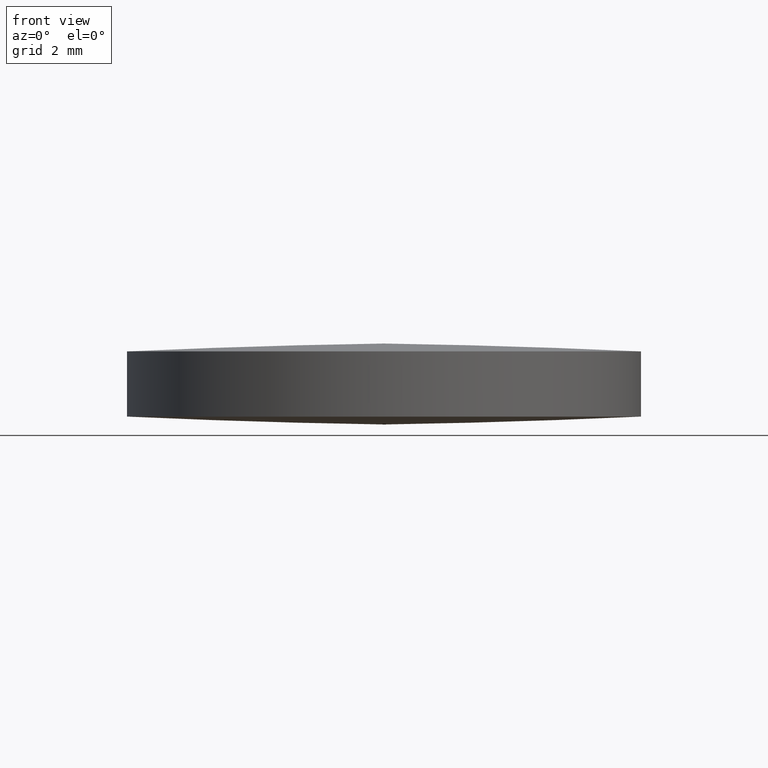
[diagram: clean part render]
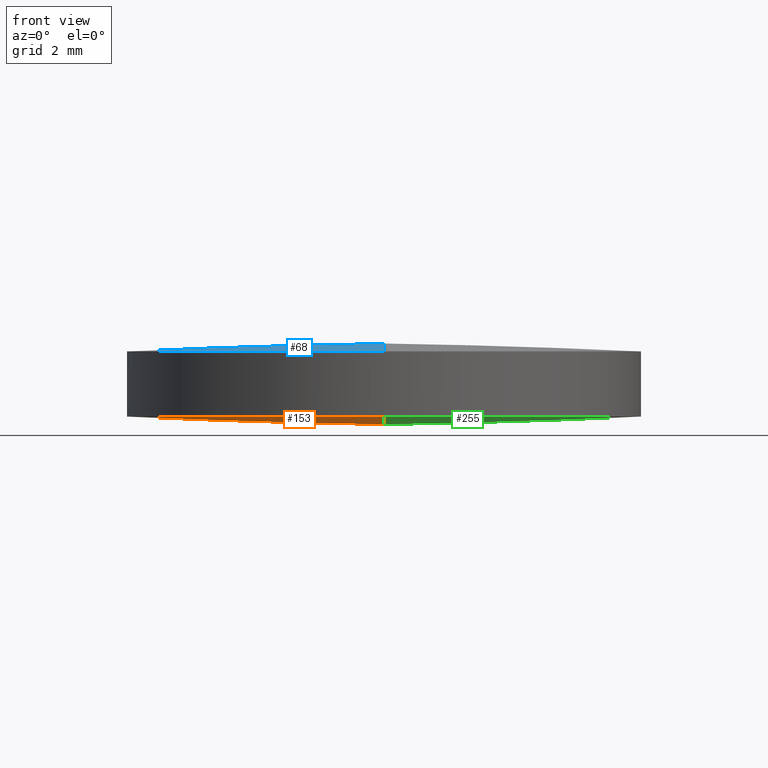
[diagram: same view with three faces highlighted in distinct colors, each labeled with its STEP entity id]
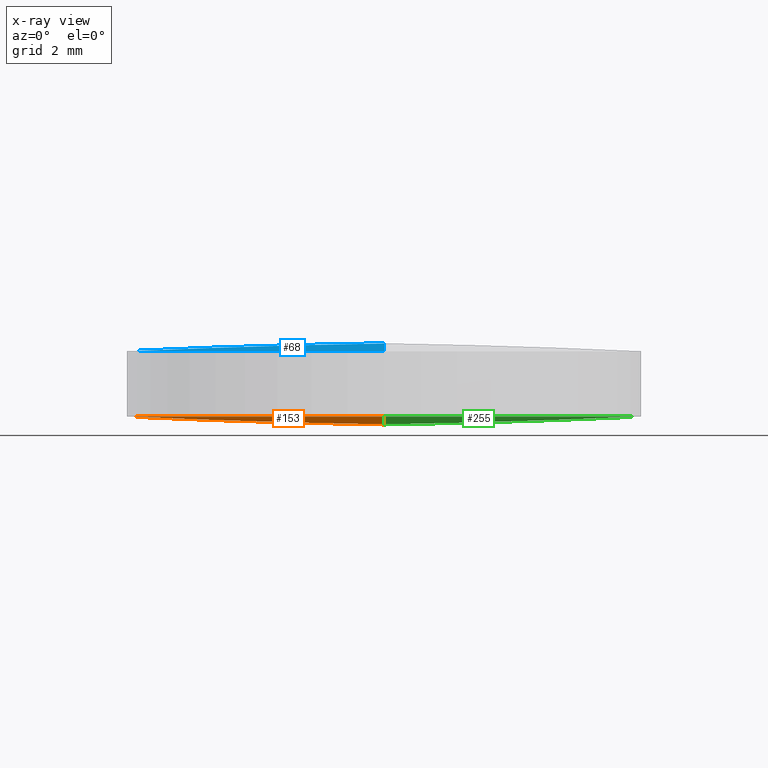
[diagram: x-ray of the same camera — body ghosted, the three highlighted faces saturated]
A machine part, front view with three faces highlighted in distinct colors.
The next image is the same camera in x-ray (body ghosted, the three faces saturated) — at least one of them is partly hidden behind the body in this view.
Their STEP definitions:

[orange] entity #153 — the highlighted face is a freeform B-spline surface patch.
#2 = CARTESIAN_POINT ( 'NONE',  ( 7.105427357601000300E-015, 7.105427357601000300E-015, 103.4000000000000100 ) ) ;
#8 = CARTESIAN_POINT ( 'NONE',  ( -4.263824758279389100, 2.144798117303475600, -0.0008099461018445440600 ) ) ;
#9 = CARTESIAN_POINT ( 'NONE',  ( -2.132421672001572500, 2.144798117303475600, -0.06671192655137170300 ) ) ;
#12 = ORIENTED_EDGE ( 'NONE', *, *, #87, .F. ) ;
#15 = DIRECTION ( 'NONE',  ( 1.000000000000000000, 8.881784197001252300E-016, 0.0000000000000000000 ) ) ;
#17 = EDGE_CURVE ( 'NONE', #152, #101, #275, .T. ) ;
#26 = DIRECTION ( 'NONE',  ( -0.0000000000000000000, -0.0000000000000000000, -1.000000000000000000 ) ) ;
#27 = CARTESIAN_POINT ( 'NONE',  ( -6.349999999999999600, 1.998896044546239400E-015, 0.1951672643184800000 ) ) ;
#33 = CARTESIAN_POINT ( 'NONE',  ( -4.252838692053341400, 6.426102327413745200, 0.2656100430614600200 ) ) ;
#45 = EDGE_CURVE ( 'NONE', #133, #152, #98, .T. ) ;
#50 = AXIS2_PLACEMENT_3D ( 'NONE', #92, #116, #15 ) ;
#62 = CARTESIAN_POINT ( 'NONE',  ( -2.132421672001572100, -2.144798117303465400, -0.06671192655135792200 ) ) ;
#64 = ORIENTED_EDGE ( 'NONE', *, *, #17, .T. ) ;
#75 = CARTESIAN_POINT ( 'NONE',  ( -2.220774660677933400E-014, 6.350000000000019200, 0.1951672643184799200 ) ) ;
#76 = DIRECTION ( 'NONE',  ( 1.000000000000000000, 0.0000000000000000000, 0.0000000000000000000 ) ) ;
#87 = EDGE_CURVE ( 'NONE', #133, #101, #151, .T. ) ;
#92 = CARTESIAN_POINT ( 'NONE',  ( 2.498001805406600200E-016, 1.221245327087670000E-015, 0.1951672643184800000 ) ) ;
#93 =( BOUNDED_SURFACE ( )  B_SPLINE_SURFACE ( 3, 3, ( 
 ( #293, #263, #292, #164 ),
 ( #215, #171, #62, #122 ),
 ( #271, #8, #9, #100 ),
 ( #254, #33, #217, #102 ) ),
 .UNSPECIFIED., .F., .F., .F. ) 
 B_SPLINE_SURFACE_WITH_KNOTS ( ( 4, 4 ),
 ( 4, 4 ),
 ( 0.0000000000000000000, 1.000000000000000000 ),
 ( 0.0000000000000000000, 1.000000000000000000 ),
 .UNSPECIFIED. ) 
 GEOMETRIC_REPRESENTATION_ITEM ( )  RATIONAL_B_SPLINE_SURFACE ( (
 ( 1.000000000000000000, 0.9996815558770323400, 0.9996815558770323400, 1.000000000000000000),
 ( 0.9987112968147171500, 0.9983932630717050600, 0.9983932630717050600, 0.9987112968147171500),
 ( 0.9987112968147171500, 0.9983932630717050600, 0.9983932630717050600, 0.9987112968147171500),
 ( 1.000000000000000000, 0.9996815558770323400, 0.9996815558770323400, 1.000000000000000000) ) ) 
 REPRESENTATION_ITEM ( '' )  SURFACE ( )  );
#98 = CIRCLE ( 'NONE', #50, 6.349999999999999600 ) ;
#100 = CARTESIAN_POINT ( 'NONE',  ( -4.770489558936219500E-014, 2.144798117303475600, -0.06671192655137282700 ) ) ;
#101 = VERTEX_POINT ( 'NONE', #75 ) ;
#102 = CARTESIAN_POINT ( 'NONE',  ( -4.683753385137379200E-014, 6.426102327413747000, 0.1998778640373398700 ) ) ;
#111 = AXIS2_PLACEMENT_3D ( 'NONE', #2, #166, #269 ) ;
#116 = DIRECTION ( 'NONE',  ( -0.0000000000000000000, -0.0000000000000000000, -1.000000000000000000 ) ) ;
#122 = CARTESIAN_POINT ( 'NONE',  ( -4.770489558936219500E-014, -2.144798117303464900, -0.06671192655135904600 ) ) ;
#133 = VERTEX_POINT ( 'NONE', #163 ) ;
#151 = CIRCLE ( 'NONE', #111, 103.4000000000000100 ) ;
#152 = VERTEX_POINT ( 'NONE', #27 ) ;
#153 = ADVANCED_FACE ( 'NONE', ( #294 ), #93, .T. ) ;
#163 = CARTESIAN_POINT ( 'NONE',  ( -2.220774660677933400E-014, -6.350000000000010300, 0.1951672643184799200 ) ) ;
#164 = CARTESIAN_POINT ( 'NONE',  ( -4.683753385137379200E-014, -6.426102327413736300, 0.1998778640373537500 ) ) ;
#166 = DIRECTION ( 'NONE',  ( 1.000000000000000000, 7.982089632700459600E-032, -2.840290826249820100E-016 ) ) ;
#171 = CARTESIAN_POINT ( 'NONE',  ( -4.263824758279389100, -2.144798117303465400, -0.0008099461018308020100 ) ) ;
#199 = ORIENTED_EDGE ( 'NONE', *, *, #45, .T. ) ;
#215 = CARTESIAN_POINT ( 'NONE',  ( -6.392173060473999700, -2.144798117303464900, 0.1309310565021301100 ) ) ;
#217 = CARTESIAN_POINT ( 'NONE',  ( -2.126927326657058500, 6.426102327413745200, 0.1998778640373409800 ) ) ;
#218 = AXIS2_PLACEMENT_3D ( 'NONE', #295, #26, #76 ) ;
#237 = EDGE_LOOP ( 'NONE', ( #12, #199, #64 ) ) ;
#254 = CARTESIAN_POINT ( 'NONE',  ( -6.375703144248110900, 6.426102327413747000, 0.3970116050314026500 ) ) ;
#263 = CARTESIAN_POINT ( 'NONE',  ( -4.252838692053340500, -6.426102327413735400, 0.2656100430614739000 ) ) ;
#269 = DIRECTION ( 'NONE',  ( 0.0000000000000000000, -1.000000000000000000, -2.684291645612080600E-016 ) ) ;
#271 = CARTESIAN_POINT ( 'NONE',  ( -6.392173060474000600, 2.144798117303475600, 0.1309310565021164500 ) ) ;
#275 = CIRCLE ( 'NONE', #218, 6.349999999999999600 ) ;
#292 = CARTESIAN_POINT ( 'NONE',  ( -2.126927326657058100, -6.426102327413735400, 0.1998778640373548600 ) ) ;
#293 = CARTESIAN_POINT ( 'NONE',  ( -6.375703144248110000, -6.426102327413736300, 0.3970116050314165300 ) ) ;
#294 = FACE_OUTER_BOUND ( 'NONE', #237, .T. ) ;
#295 = CARTESIAN_POINT ( 'NONE',  ( 2.498001805406600200E-016, 1.221245327087670000E-015, 0.1951672643184800000 ) ) ;

[blue] entity #68 — the highlighted face is a freeform B-spline surface patch.
#3 = DIRECTION ( 'NONE',  ( -1.000000000000000000, 7.982089632700459600E-032, 2.840290826249820100E-016 ) ) ;
#4 = EDGE_CURVE ( 'NONE', #161, #175, #172, .T. ) ;
#13 = CARTESIAN_POINT ( 'NONE',  ( 2.228212791312067500E-014, 2.144798117303475600, 2.066711926551370900 ) ) ;
#24 = ORIENTED_EDGE ( 'NONE', *, *, #239, .F. ) ;
#25 = DIRECTION ( 'NONE',  ( -0.0000000000000000000, -0.0000000000000000000, -1.000000000000000000 ) ) ;
#29 = CARTESIAN_POINT ( 'NONE',  ( 2.220640865946257500E-014, -6.426102327413736300, 1.800122135962645100 ) ) ;
#35 = CIRCLE ( 'NONE', #198, 6.349999999999999600 ) ;
#36 = ORIENTED_EDGE ( 'NONE', *, *, #4, .T. ) ;
#39 = CIRCLE ( 'NONE', #143, 6.349999999999999600 ) ;
#41 = CARTESIAN_POINT ( 'NONE',  ( 2.498001805406600200E-016, 1.221245327087670000E-015, 1.804832735681519900 ) ) ;
#44 = DIRECTION ( 'NONE',  ( -0.0000000000000000000, -0.0000000000000000000, -1.000000000000000000 ) ) ;
#48 = CARTESIAN_POINT ( 'NONE',  ( 2.498001805406600200E-016, 1.221245327087670000E-015, 1.804832735681519900 ) ) ;
#51 = ORIENTED_EDGE ( 'NONE', *, *, #83, .F. ) ;
#56 = CARTESIAN_POINT ( 'NONE',  ( 2.220774660677933400E-014, -6.350000000000010300, 1.804832735681521000 ) ) ;
#57 = DIRECTION ( 'NONE',  ( 0.0000000000000000000, -1.000000000000000000, 2.684291645612080600E-016 ) ) ;
#66 = VERTEX_POINT ( 'NONE', #96 ) ;
#68 = ADVANCED_FACE ( 'NONE', ( #191 ), #227, .T. ) ;
#80 = DIRECTION ( 'NONE',  ( 1.000000000000000000, 0.0000000000000000000, 0.0000000000000000000 ) ) ;
#83 = EDGE_CURVE ( 'NONE', #66, #175, #39, .T. ) ;
#88 = CARTESIAN_POINT ( 'NONE',  ( 2.228212791312067800E-014, -2.144798117303464900, 2.066711926551358000 ) ) ;
#90 = CARTESIAN_POINT ( 'NONE',  ( -4.252838692053300600, -6.426102327413735400, 1.734389956938523900 ) ) ;
#95 = DIRECTION ( 'NONE',  ( 1.000000000000000000, 0.0000000000000000000, 0.0000000000000000000 ) ) ;
#96 = CARTESIAN_POINT ( 'NONE',  ( -6.349999999999999600, 1.998896044546239400E-015, 1.804832735681519900 ) ) ;
#128 = EDGE_LOOP ( 'NONE', ( #24, #36, #51 ) ) ;
#132 = CARTESIAN_POINT ( 'NONE',  ( -4.263824758279350900, 2.144798117303475600, 2.000809946101842000 ) ) ;
#143 = AXIS2_PLACEMENT_3D ( 'NONE', #48, #25, #95 ) ;
#161 = VERTEX_POINT ( 'NONE', #56 ) ;
#172 = CIRCLE ( 'NONE', #290, 103.4000000000000100 ) ;
#175 = VERTEX_POINT ( 'NONE', #231 ) ;
#179 = CARTESIAN_POINT ( 'NONE',  ( -6.392173060473974800, 2.144798117303475600, 1.869068943497881800 ) ) ;
#182 = CARTESIAN_POINT ( 'NONE',  ( 2.220640865946257500E-014, 6.426102327413747000, 1.800122135962658900 ) ) ;
#191 = FACE_OUTER_BOUND ( 'NONE', #128, .T. ) ;
#198 = AXIS2_PLACEMENT_3D ( 'NONE', #41, #44, #80 ) ;
#201 = CARTESIAN_POINT ( 'NONE',  ( -4.263824758279350900, -2.144798117303465400, 2.000809946101829200 ) ) ;
#227 =( BOUNDED_SURFACE ( )  B_SPLINE_SURFACE ( 3, 3, ( 
 ( #29, #257, #90, #241 ),
 ( #88, #243, #201, #245 ),
 ( #13, #286, #132, #179 ),
 ( #182, #284, #262, #242 ) ),
 .UNSPECIFIED., .F., .F., .F. ) 
 B_SPLINE_SURFACE_WITH_KNOTS ( ( 4, 4 ),
 ( 4, 4 ),
 ( 0.0000000000000000000, 1.000000000000000000 ),
 ( 0.0000000000000000000, 1.000000000000000000 ),
 .UNSPECIFIED. ) 
 GEOMETRIC_REPRESENTATION_ITEM ( )  RATIONAL_B_SPLINE_SURFACE ( (
 ( 1.000000000000000000, 0.9996815558770323400, 0.9996815558770323400, 1.000000000000000000),
 ( 0.9987112968147171500, 0.9983932630717050600, 0.9983932630717050600, 0.9987112968147171500),
 ( 0.9987112968147171500, 0.9983932630717050600, 0.9983932630717050600, 0.9987112968147171500),
 ( 1.000000000000000000, 0.9996815558770323400, 0.9996815558770323400, 1.000000000000000000) ) ) 
 REPRESENTATION_ITEM ( '' )  SURFACE ( )  );
#231 = CARTESIAN_POINT ( 'NONE',  ( 2.220774660677933400E-014, 6.350000000000019200, 1.804832735681521000 ) ) ;
#239 = EDGE_CURVE ( 'NONE', #161, #66, #35, .T. ) ;
#241 = CARTESIAN_POINT ( 'NONE',  ( -6.375703144248084300, -6.426102327413736300, 1.602988394968581300 ) ) ;
#242 = CARTESIAN_POINT ( 'NONE',  ( -6.375703144248085200, 6.426102327413747000, 1.602988394968595200 ) ) ;
#243 = CARTESIAN_POINT ( 'NONE',  ( -2.132421672001516100, -2.144798117303465400, 2.066711926551358500 ) ) ;
#245 = CARTESIAN_POINT ( 'NONE',  ( -6.392173060473973900, -2.144798117303464900, 1.869068943497867600 ) ) ;
#251 = CARTESIAN_POINT ( 'NONE',  ( -7.105427357601000300E-015, 7.105427357601000300E-015, -101.4000000000000100 ) ) ;
#257 = CARTESIAN_POINT ( 'NONE',  ( -2.126927326657003500, -6.426102327413735400, 1.800122135962645800 ) ) ;
#262 = CARTESIAN_POINT ( 'NONE',  ( -4.252838692053300600, 6.426102327413745200, 1.734389956938537700 ) ) ;
#284 = CARTESIAN_POINT ( 'NONE',  ( -2.126927326657003900, 6.426102327413745200, 1.800122135962659800 ) ) ;
#286 = CARTESIAN_POINT ( 'NONE',  ( -2.132421672001516600, 2.144798117303475600, 2.066711926551372300 ) ) ;
#290 = AXIS2_PLACEMENT_3D ( 'NONE', #251, #3, #57 ) ;

[green] entity #255 — the highlighted face is a freeform B-spline surface patch.
#1 = AXIS2_PLACEMENT_3D ( 'NONE', #247, #229, #138 ) ;
#2 = CARTESIAN_POINT ( 'NONE',  ( 7.105427357601000300E-015, 7.105427357601000300E-015, 103.4000000000000100 ) ) ;
#6 = CARTESIAN_POINT ( 'NONE',  ( -2.220640865946257500E-014, -6.426102327413736300, 0.1998778640373566300 ) ) ;
#20 = CARTESIAN_POINT ( 'NONE',  ( -2.228212791312067500E-014, 2.144798117303475600, -0.06671192655136991300 ) ) ;
#22 = CARTESIAN_POINT ( 'NONE',  ( 6.392173060473973900, 2.144798117303475600, 0.1309310565021202200 ) ) ;
#28 = ORIENTED_EDGE ( 'NONE', *, *, #228, .T. ) ;
#61 = CARTESIAN_POINT ( 'NONE',  ( 2.498001805406600200E-016, 1.221245327087670000E-015, 0.1951672643184800000 ) ) ;
#67 = CARTESIAN_POINT ( 'NONE',  ( 2.132421672001516100, -2.144798117303465400, -0.06671192655135674300 ) ) ;
#71 = CIRCLE ( 'NONE', #1, 6.349999999999999600 ) ;
#75 = CARTESIAN_POINT ( 'NONE',  ( -2.220774660677933400E-014, 6.350000000000019200, 0.1951672643184799200 ) ) ;
#79 = CIRCLE ( 'NONE', #184, 6.349999999999999600 ) ;
#81 = VERTEX_POINT ( 'NONE', #267 ) ;
#87 = EDGE_CURVE ( 'NONE', #133, #101, #151, .T. ) ;
#101 = VERTEX_POINT ( 'NONE', #75 ) ;
#111 = AXIS2_PLACEMENT_3D ( 'NONE', #2, #166, #269 ) ;
#115 = CARTESIAN_POINT ( 'NONE',  ( 2.126927326657003900, 6.426102327413745200, 0.1998778640373421700 ) ) ;
#117 = ORIENTED_EDGE ( 'NONE', *, *, #124, .T. ) ;
#119 = CARTESIAN_POINT ( 'NONE',  ( 6.392173060473973000, -2.144798117303464900, 0.1309310565021339400 ) ) ;
#124 = EDGE_CURVE ( 'NONE', #101, #81, #71, .T. ) ;
#125 = DIRECTION ( 'NONE',  ( -0.0000000000000000000, -0.0000000000000000000, -1.000000000000000000 ) ) ;
#127 = CARTESIAN_POINT ( 'NONE',  ( 6.375703144248083400, -6.426102327413736300, 0.3970116050314203000 ) ) ;
#131 = CARTESIAN_POINT ( 'NONE',  ( -2.220640865946257500E-014, 6.426102327413747000, 0.1998778640373427600 ) ) ;
#133 = VERTEX_POINT ( 'NONE', #163 ) ;
#138 = DIRECTION ( 'NONE',  ( 1.000000000000000000, 0.0000000000000000000, 0.0000000000000000000 ) ) ;
#145 = EDGE_LOOP ( 'NONE', ( #28, #268, #117 ) ) ;
#151 = CIRCLE ( 'NONE', #111, 103.4000000000000100 ) ;
#162 = CARTESIAN_POINT ( 'NONE',  ( 4.263824758279350000, 2.144798117303475600, -0.0008099461018408037800 ) ) ;
#163 = CARTESIAN_POINT ( 'NONE',  ( -2.220774660677933400E-014, -6.350000000000010300, 0.1951672643184799200 ) ) ;
#166 = DIRECTION ( 'NONE',  ( 1.000000000000000000, 7.982089632700459600E-032, -2.840290826249820100E-016 ) ) ;
#169 = CARTESIAN_POINT ( 'NONE',  ( 2.126927326657003500, -6.426102327413735400, 0.1998778640373560500 ) ) ;
#176 =( BOUNDED_SURFACE ( )  B_SPLINE_SURFACE ( 3, 3, ( 
 ( #6, #169, #276, #127 ),
 ( #277, #67, #187, #119 ),
 ( #20, #203, #162, #22 ),
 ( #131, #115, #285, #261 ) ),
 .UNSPECIFIED., .F., .F., .F. ) 
 B_SPLINE_SURFACE_WITH_KNOTS ( ( 4, 4 ),
 ( 4, 4 ),
 ( 0.0000000000000000000, 1.000000000000000000 ),
 ( 0.0000000000000000000, 1.000000000000000000 ),
 .UNSPECIFIED. ) 
 GEOMETRIC_REPRESENTATION_ITEM ( )  RATIONAL_B_SPLINE_SURFACE ( (
 ( 1.000000000000000000, 0.9996815558770323400, 0.9996815558770323400, 1.000000000000000000),
 ( 0.9987112968147171500, 0.9983932630717050600, 0.9983932630717050600, 0.9987112968147171500),
 ( 0.9987112968147171500, 0.9983932630717050600, 0.9983932630717050600, 0.9987112968147171500),
 ( 1.000000000000000000, 0.9996815558770323400, 0.9996815558770323400, 1.000000000000000000) ) ) 
 REPRESENTATION_ITEM ( '' )  SURFACE ( )  );
#184 = AXIS2_PLACEMENT_3D ( 'NONE', #61, #125, #270 ) ;
#187 = CARTESIAN_POINT ( 'NONE',  ( 4.263824758279349100, -2.144798117303465400, -0.0008099461018270615100 ) ) ;
#194 = FACE_OUTER_BOUND ( 'NONE', #145, .T. ) ;
#203 = CARTESIAN_POINT ( 'NONE',  ( 2.132421672001516600, 2.144798117303475600, -0.06671192655137053700 ) ) ;
#228 = EDGE_CURVE ( 'NONE', #81, #133, #79, .T. ) ;
#229 = DIRECTION ( 'NONE',  ( -0.0000000000000000000, -0.0000000000000000000, -1.000000000000000000 ) ) ;
#247 = CARTESIAN_POINT ( 'NONE',  ( 2.498001805406600200E-016, 1.221245327087670000E-015, 0.1951672643184800000 ) ) ;
#255 = ADVANCED_FACE ( 'NONE', ( #194 ), #176, .T. ) ;
#261 = CARTESIAN_POINT ( 'NONE',  ( 6.375703144248085200, 6.426102327413747000, 0.3970116050314064200 ) ) ;
#267 = CARTESIAN_POINT ( 'NONE',  ( 6.349999999999999600, 1.221245327087670000E-015, 0.1951672643184800000 ) ) ;
#268 = ORIENTED_EDGE ( 'NONE', *, *, #87, .T. ) ;
#269 = DIRECTION ( 'NONE',  ( 0.0000000000000000000, -1.000000000000000000, -2.684291645612080600E-016 ) ) ;
#270 = DIRECTION ( 'NONE',  ( 1.000000000000000000, 0.0000000000000000000, 0.0000000000000000000 ) ) ;
#276 = CARTESIAN_POINT ( 'NONE',  ( 4.252838692053298800, -6.426102327413735400, 0.2656100430614776200 ) ) ;
#277 = CARTESIAN_POINT ( 'NONE',  ( -2.228212791312067800E-014, -2.144798117303464900, -0.06671192655135613200 ) ) ;
#285 = CARTESIAN_POINT ( 'NONE',  ( 4.252838692053300600, 6.426102327413745200, 0.2656100430614636900 ) ) ;